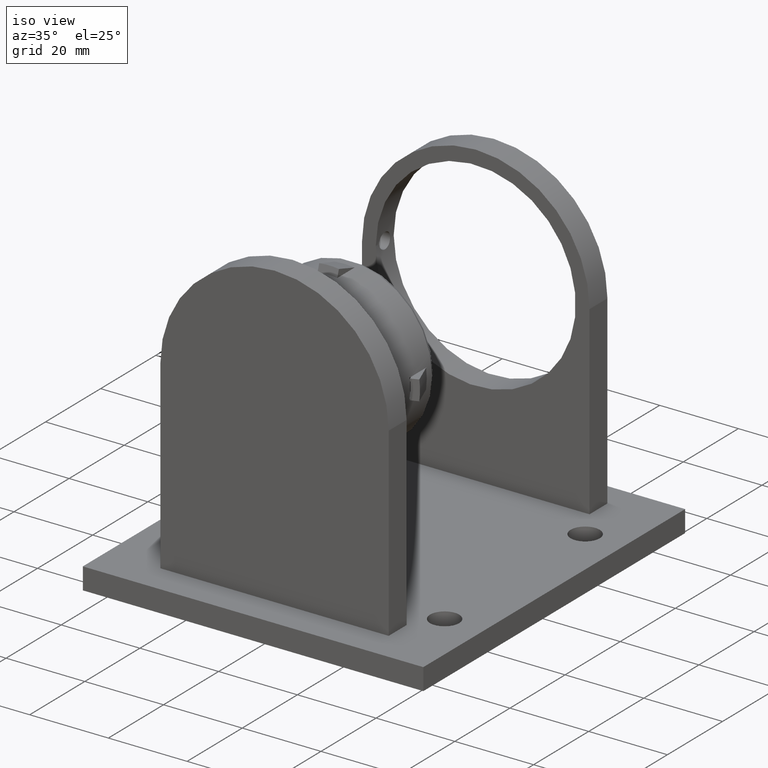
[diagram: clean part render]
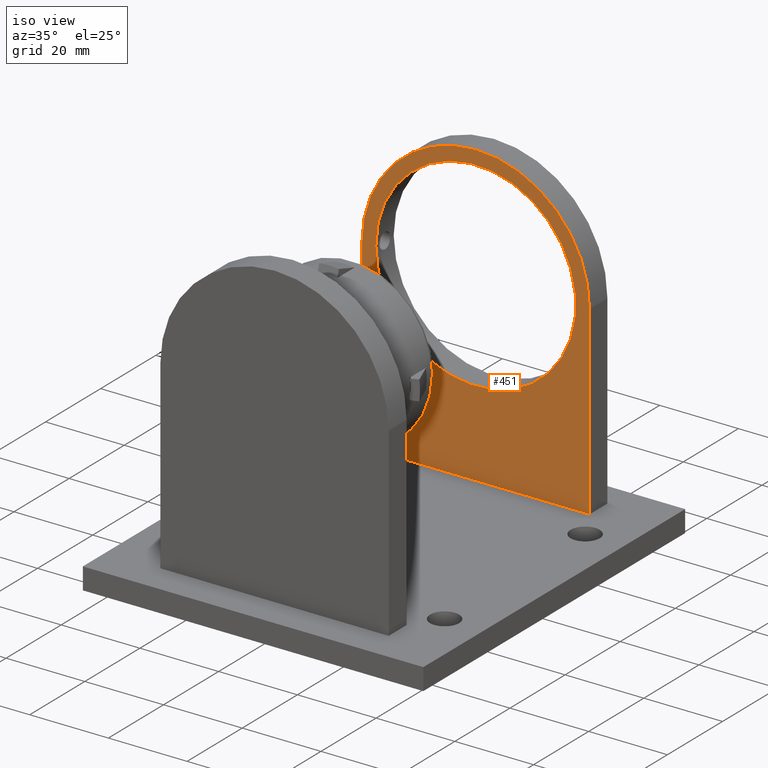
[diagram: same view with one face highlighted and labeled with its STEP entity id]
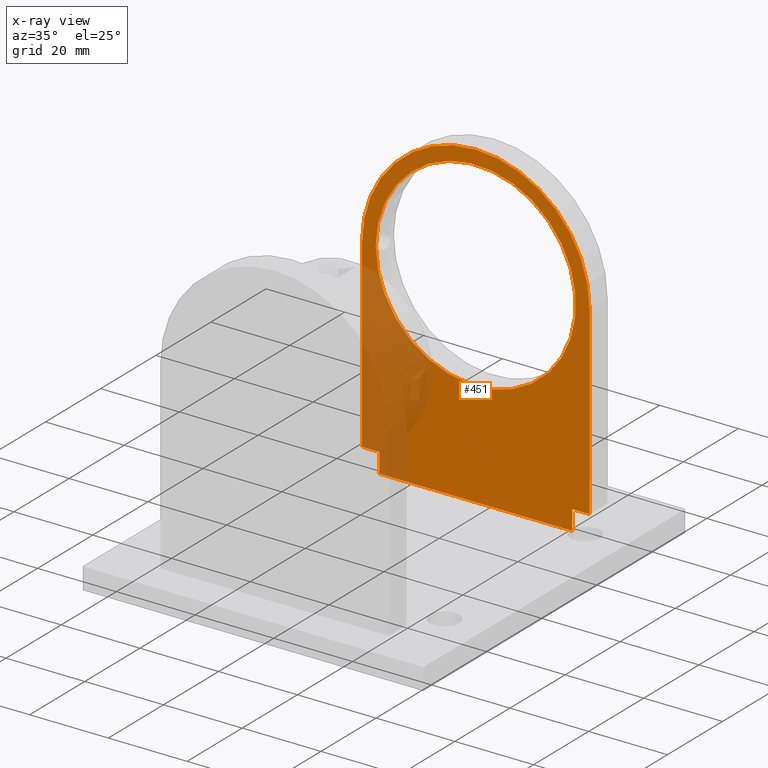
[diagram: x-ray of the same camera — body ghosted, the highlighted face saturated]
A machine part, iso view. The second image highlights one B-rep face of the part: STEP entity #451.
The next image is the same camera in x-ray: the body ghosted, the highlighted face saturated — about 24% of this face is hidden behind the body in this view.
In plain terms, the highlighted planar face has unit normal (-0, 1, -0).
Its self-contained STEP definition (entity closure, byte-faithful):
#451=ADVANCED_FACE('',(#1568,#1570),#1572,.F.);
#1568=FACE_BOUND('',#1569,.T.);
#1569=EDGE_LOOP('',(#2444,#2445,#2446,#2447,#2448,#2449,#2450,#2451));
#1570=FACE_BOUND('',#1571,.T.);
#1571=EDGE_LOOP('',(#2452));
#1572=PLANE('',#1573);
#1573=AXIS2_PLACEMENT_3D('',#1574,#1575,#1576);
#1574=CARTESIAN_POINT('',(0.,0.,0.));
#1575=DIRECTION('',(-0.,1.,0.));
#1576=DIRECTION('',(1.,0.,0.));
#2444=ORIENTED_EDGE('',*,*,#3031,.F.);
#2445=ORIENTED_EDGE('',*,*,#3032,.F.);
#2446=ORIENTED_EDGE('',*,*,#3033,.F.);
#2447=ORIENTED_EDGE('',*,*,#3015,.F.);
#2448=ORIENTED_EDGE('',*,*,#3012,.F.);
#2449=ORIENTED_EDGE('',*,*,#3029,.F.);
#2450=ORIENTED_EDGE('',*,*,#3034,.F.);
#2451=ORIENTED_EDGE('',*,*,#3035,.F.);
#2452=ORIENTED_EDGE('',*,*,#3022,.T.);
#3012=EDGE_CURVE('',#3370,#3372,#3373,.T.);
#3015=EDGE_CURVE('',#3372,#3376,#3377,.T.);
#3022=EDGE_CURVE('',#3389,#3389,#3390,.T.);
#3029=EDGE_CURVE('',#3402,#3370,#3403,.T.);
#3031=EDGE_CURVE('',#3405,#3406,#3407,.T.);
#3032=EDGE_CURVE('',#3408,#3405,#3409,.T.);
#3033=EDGE_CURVE('',#3376,#3408,#3410,.T.);
#3034=EDGE_CURVE('',#3411,#3402,#3412,.T.);
#3035=EDGE_CURVE('',#3406,#3411,#3413,.T.);
#3370=VERTEX_POINT('',#4009);
#3372=VERTEX_POINT('',#4013);
#3373=LINE('',#4014,#4015);
#3376=VERTEX_POINT('',#4108);
#3377=CIRCLE('',#4109,28.9);
#3389=VERTEX_POINT('',#4284);
#3390=CIRCLE('',#4285,25.4);
#3402=VERTEX_POINT('',#4312);
#3403=LINE('',#4313,#4314);
#3405=VERTEX_POINT('',#4319);
#3406=VERTEX_POINT('',#4320);
#3407=LINE('',#4321,#4322);
#3408=VERTEX_POINT('',#4324);
#3409=LINE('',#4325,#4326);
#3410=LINE('',#4328,#4329);
#3411=VERTEX_POINT('',#4331);
#3412=LINE('',#4332,#4333);
#3413=LINE('',#4335,#4336);
#4009=CARTESIAN_POINT('',(28.9,0.,47.1));
#4013=CARTESIAN_POINT('',(28.9,0.,0.));
#4014=CARTESIAN_POINT('',(28.9,0.,47.1));
#4015=VECTOR('',#4016,1.);
#4016=DIRECTION('',(0.,0.,-1.));
#4108=CARTESIAN_POINT('',(-28.9,0.,-3.53922924953585E-015));
#4109=AXIS2_PLACEMENT_3D('',#4110,#4111,#4112);
#4110=CARTESIAN_POINT('',(0.,0.,0.));
#4111=DIRECTION('',(-0.,1.,0.));
#4112=DIRECTION('',(1.,0.,0.));
#4284=CARTESIAN_POINT('',(25.4,0.,0.));
#4285=AXIS2_PLACEMENT_3D('',#4286,#4287,#4288);
#4286=CARTESIAN_POINT('',(0.,0.,0.));
#4287=DIRECTION('',(-0.,1.,0.));
#4288=DIRECTION('',(1.,0.,0.));
#4312=CARTESIAN_POINT('',(24.5,0.,47.1));
#4313=CARTESIAN_POINT('',(24.5,0.,47.1));
#4314=VECTOR('',#4315,1.);
#4315=DIRECTION('',(1.,0.,0.));
#4319=CARTESIAN_POINT('',(-24.5,0.,47.1));
#4320=CARTESIAN_POINT('',(-24.5,0.,52.1));
#4321=CARTESIAN_POINT('',(-24.5,0.,47.1));
#4322=VECTOR('',#4323,1.);
#4323=DIRECTION('',(0.,0.,1.));
#4324=CARTESIAN_POINT('',(-28.9,0.,47.1));
#4325=CARTESIAN_POINT('',(-28.9,0.,47.1));
#4326=VECTOR('',#4327,1.);
#4327=DIRECTION('',(1.,0.,0.));
#4328=CARTESIAN_POINT('',(-28.9,0.,-3.53922924953585E-015));
#4329=VECTOR('',#4330,1.);
#4330=DIRECTION('',(-7.5429165155E-017,0.,1.));
#4331=CARTESIAN_POINT('',(24.5,0.,52.1));
#4332=CARTESIAN_POINT('',(24.5,0.,52.1));
#4333=VECTOR('',#4334,1.);
#4334=DIRECTION('',(0.,0.,-1.));
#4335=CARTESIAN_POINT('',(-24.5,0.,52.1));
#4336=VECTOR('',#4337,1.);
#4337=DIRECTION('',(1.,0.,0.));